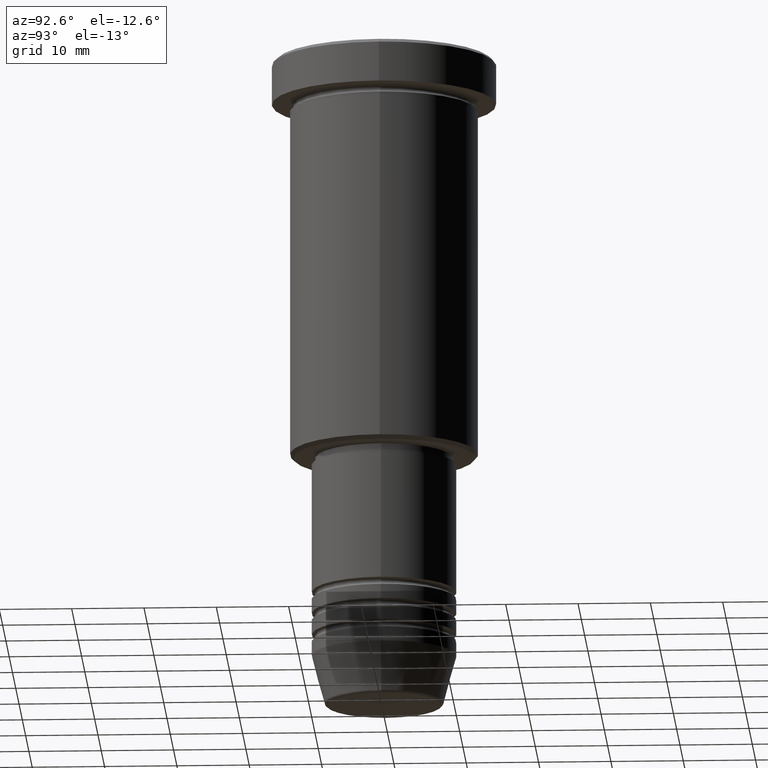
[diagram: clean part render]
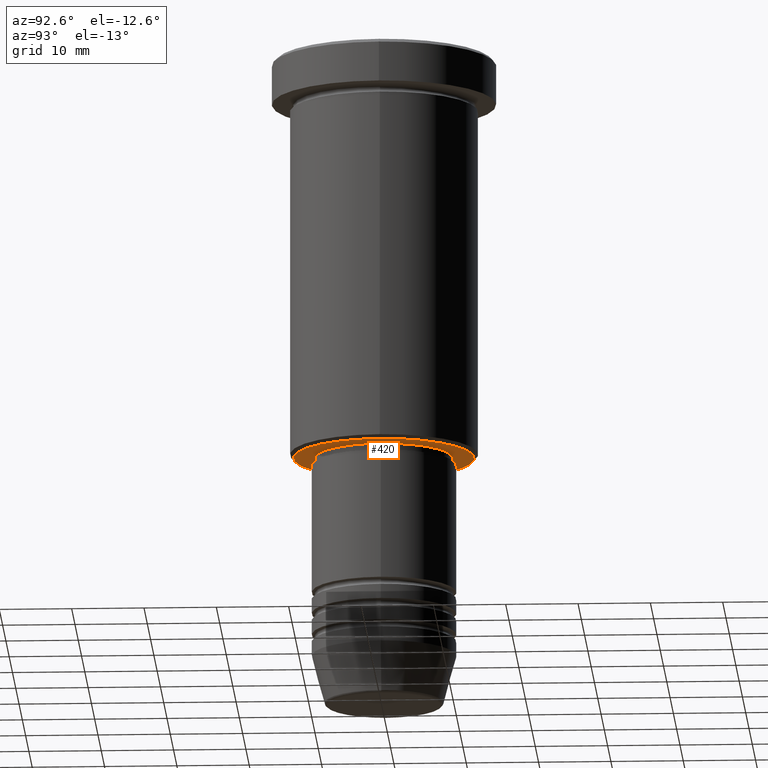
[diagram: same view with one face highlighted and labeled with its STEP entity id]
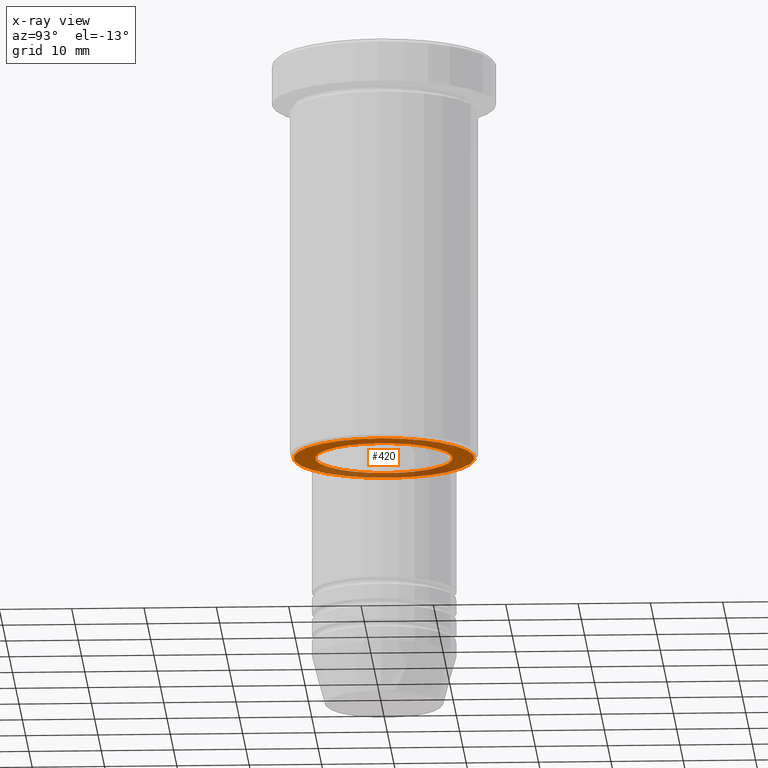
[diagram: x-ray of the same camera — body ghosted, the highlighted face saturated]
A machine part, auxiliary view. The second image highlights one B-rep face of the part: STEP entity #420.
The next image is the same camera in x-ray: the body ghosted, the highlighted face saturated — about 31% of this face is hidden behind the body in this view.
In plain terms, the highlighted planar face has unit normal (0, 0, -1).
Its self-contained STEP definition (entity closure, byte-faithful):
#1 = DIRECTION ( 'NONE',  ( -0.000000000000000000, -0.000000000000000000, 1.000000000000000000 ) ) ;
#7 = CARTESIAN_POINT ( 'NONE',  ( 12.50000000000000355, 0.000000000000000000, -56.00000000000000711 ) ) ;
#28 = AXIS2_PLACEMENT_3D ( 'NONE', #273, #1, #155 ) ;
#42 = ORIENTED_EDGE ( 'NONE', *, *, #915, .T. ) ;
#56 = CARTESIAN_POINT ( 'NONE',  ( -12.50000000000000355, 1.561424668912875506E-15, -56.00000000000000711 ) ) ;
#86 = VERTEX_POINT ( 'NONE', #1047 ) ;
#117 = CARTESIAN_POINT ( 'NONE',  ( 0.000000000000000000, 0.000000000000000000, -56.00000000000000711 ) ) ;
#126 = DIRECTION ( 'NONE',  ( 1.000000000000000000, 0.000000000000000000, 0.000000000000000000 ) ) ;
#130 = AXIS2_PLACEMENT_3D ( 'NONE', #141, #972, #874 ) ;
#141 = CARTESIAN_POINT ( 'NONE',  ( 0.000000000000000000, 13.00000000000000000, -56.00000000000000711 ) ) ;
#153 = EDGE_CURVE ( 'NONE', #86, #1174, #598, .T. ) ;
#155 = DIRECTION ( 'NONE',  ( 1.000000000000000000, 0.000000000000000000, 0.000000000000000000 ) ) ;
#258 = CARTESIAN_POINT ( 'NONE',  ( -9.500000000000000000, 1.163414459189985485E-15, -56.00000000000000711 ) ) ;
#273 = CARTESIAN_POINT ( 'NONE',  ( 0.000000000000000000, 0.000000000000000000, -56.00000000000000711 ) ) ;
#281 = ORIENTED_EDGE ( 'NONE', *, *, #153, .T. ) ;
#312 = DIRECTION ( 'NONE',  ( -0.000000000000000000, -0.000000000000000000, 1.000000000000000000 ) ) ;
#353 = EDGE_CURVE ( 'NONE', #788, #836, #516, .T. ) ;
#363 = ORIENTED_EDGE ( 'NONE', *, *, #829, .T. ) ;
#369 = CIRCLE ( 'NONE', #463, 9.500000000000000000 ) ;
#370 = AXIS2_PLACEMENT_3D ( 'NONE', #1096, #929, #473 ) ;
#420 = ADVANCED_FACE ( 'NONE', ( #848, #587 ), #427, .T. ) ;
#427 = PLANE ( 'NONE',  #130 ) ;
#436 = EDGE_LOOP ( 'NONE', ( #281, #363 ) ) ;
#463 = AXIS2_PLACEMENT_3D ( 'NONE', #1026, #312, #126 ) ;
#473 = DIRECTION ( 'NONE',  ( -1.000000000000000000, 0.000000000000000000, 0.000000000000000000 ) ) ;
#516 = CIRCLE ( 'NONE', #839, 12.50000000000000355 ) ;
#587 = FACE_BOUND ( 'NONE', #436, .T. ) ;
#598 = CIRCLE ( 'NONE', #28, 9.500000000000000000 ) ;
#788 = VERTEX_POINT ( 'NONE', #7 ) ;
#829 = EDGE_CURVE ( 'NONE', #1174, #86, #369, .T. ) ;
#836 = VERTEX_POINT ( 'NONE', #56 ) ;
#839 = AXIS2_PLACEMENT_3D ( 'NONE', #117, #1135, #981 ) ;
#848 = FACE_OUTER_BOUND ( 'NONE', #861, .T. ) ;
#861 = EDGE_LOOP ( 'NONE', ( #1163, #42 ) ) ;
#874 = DIRECTION ( 'NONE',  ( -1.000000000000000000, 0.000000000000000000, -0.000000000000000000 ) ) ;
#915 = EDGE_CURVE ( 'NONE', #836, #788, #1035, .T. ) ;
#929 = DIRECTION ( 'NONE',  ( 0.000000000000000000, 0.000000000000000000, -1.000000000000000000 ) ) ;
#972 = DIRECTION ( 'NONE',  ( 0.000000000000000000, 0.000000000000000000, -1.000000000000000000 ) ) ;
#981 = DIRECTION ( 'NONE',  ( -1.000000000000000000, 0.000000000000000000, 0.000000000000000000 ) ) ;
#1026 = CARTESIAN_POINT ( 'NONE',  ( 0.000000000000000000, 0.000000000000000000, -56.00000000000000711 ) ) ;
#1035 = CIRCLE ( 'NONE', #370, 12.50000000000000355 ) ;
#1047 = CARTESIAN_POINT ( 'NONE',  ( 9.500000000000000000, 0.000000000000000000, -56.00000000000000711 ) ) ;
#1096 = CARTESIAN_POINT ( 'NONE',  ( 0.000000000000000000, 0.000000000000000000, -56.00000000000000711 ) ) ;
#1135 = DIRECTION ( 'NONE',  ( 0.000000000000000000, 0.000000000000000000, -1.000000000000000000 ) ) ;
#1163 = ORIENTED_EDGE ( 'NONE', *, *, #353, .T. ) ;
#1174 = VERTEX_POINT ( 'NONE', #258 ) ;